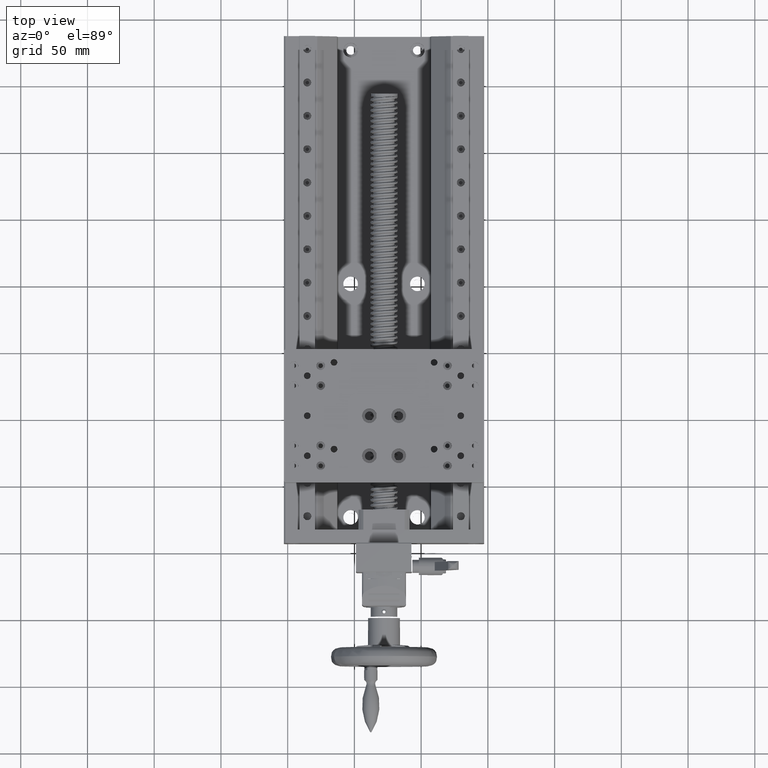
[diagram: clean part render]
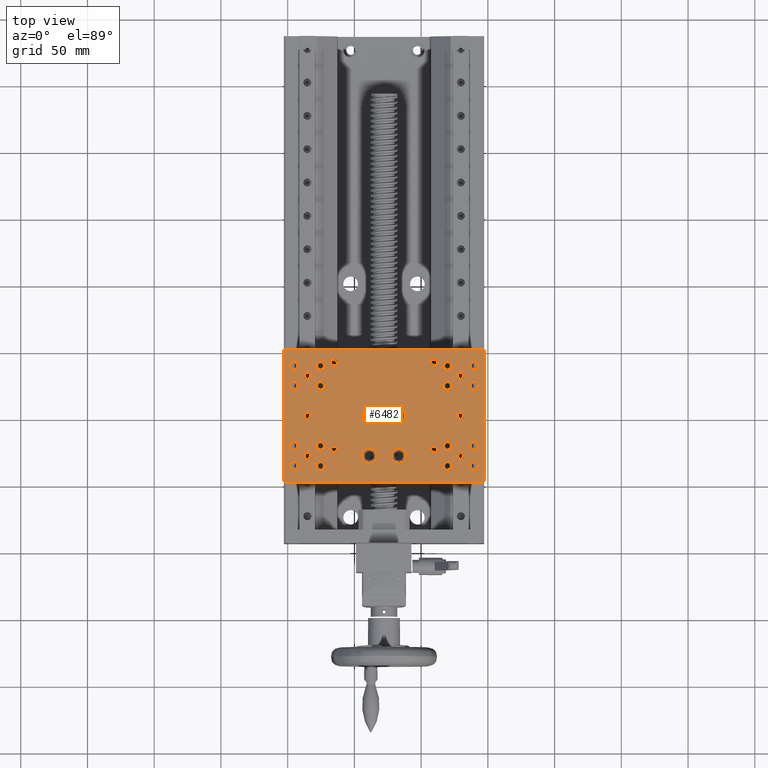
[diagram: same view with one face highlighted and labeled with its STEP entity id]
A machine part, top view. The second image highlights one B-rep face of the part: STEP entity #6482.
In plain terms, the highlighted planar face has unit normal (0, 0, 1).
Its self-contained STEP definition (entity closure, byte-faithful):
#54 = DIRECTION ( 'NONE',  ( -3.452590796308460919E-15, -1.665334536937734318E-16, -1.000000000000000000 ) ) ;
#111 = DIRECTION ( 'NONE',  ( -3.202566417187948859E-15, -1.000000000000000000, 0.000000000000000000 ) ) ;
#268 = CIRCLE ( 'NONE', #8891, 3.250000000000002665 ) ;
#270 = CARTESIAN_POINT ( 'NONE',  ( -95.32647947979995706, -88.79726459790853710, 47.49999999999963052 ) ) ;
#451 = AXIS2_PLACEMENT_3D ( 'NONE', #40846, #24515, #6334 ) ;
#486 = VECTOR ( 'NONE', #18070, 1000.000000000000114 ) ;
#506 = LINE ( 'NONE', #23642, #36720 ) ;
#558 = DIRECTION ( 'NONE',  ( -4.270088556250598741E-15, -1.000000000000000000, 0.000000000000000000 ) ) ;
#592 = ORIENTED_EDGE ( 'NONE', *, *, #40947, .T. ) ;
#660 = AXIS2_PLACEMENT_3D ( 'NONE', #16908, #30615, #44267 ) ;
#692 = EDGE_CURVE ( 'NONE', #12852, #42271, #5273, .T. ) ;
#892 = CARTESIAN_POINT ( 'NONE',  ( 29.67352052020017794, -50.54726459790895632, 47.49999999999919709 ) ) ;
#975 = VERTEX_POINT ( 'NONE', #8052 ) ;
#1004 = CARTESIAN_POINT ( 'NONE',  ( 39.67352052020010689, -70.54726459790900606, 47.49999999999916866 ) ) ;
#1033 = EDGE_CURVE ( 'NONE', #42271, #12852, #8003, .T. ) ;
#1040 = CARTESIAN_POINT ( 'NONE',  ( 9.673520520200106887, -73.04726459790890658, 47.49999999999926814 ) ) ;
#1073 = CIRCLE ( 'NONE', #6793, 3.250000000000002665 ) ;
#1095 = AXIS2_PLACEMENT_3D ( 'NONE', #1920, #19414, #15600 ) ;
#1195 = AXIS2_PLACEMENT_3D ( 'NONE', #19238, #19460, #29791 ) ;
#1211 = DIRECTION ( 'NONE',  ( -4.270088556250598741E-15, -1.000000000000000000, 0.000000000000000000 ) ) ;
#1218 = VERTEX_POINT ( 'NONE', #28174 ) ;
#1240 = ORIENTED_EDGE ( 'NONE', *, *, #3457, .T. ) ;
#1247 = VERTEX_POINT ( 'NONE', #14685 ) ;
#1364 = CIRCLE ( 'NONE', #30776, 3.250000000000002665 ) ;
#1387 = DIRECTION ( 'NONE',  ( 3.452590796308460919E-15, 1.665334536937734318E-16, 1.000000000000000000 ) ) ;
#1436 = VERTEX_POINT ( 'NONE', #40638 ) ;
#1494 = DIRECTION ( 'NONE',  ( -4.270088556250598741E-15, -1.000000000000000000, 0.000000000000000000 ) ) ;
#1539 = DIRECTION ( 'NONE',  ( 3.452590796308460919E-15, 1.665334536937734318E-16, 1.000000000000000000 ) ) ;
#1715 = DIRECTION ( 'NONE',  ( 0.7071067811865500152, 0.7071067811865451302, -2.536514071716354973E-15 ) ) ;
#1738 = DIRECTION ( 'NONE',  ( 4.163336342344379625E-15, 1.000000000000000000, 0.000000000000000000 ) ) ;
#1828 = ORIENTED_EDGE ( 'NONE', *, *, #16974, .F. ) ;
#1920 = CARTESIAN_POINT ( 'NONE',  ( 29.67352052020030584, -18.04726459790897763, 47.49999999999918998 ) ) ;
#2013 = EDGE_CURVE ( 'NONE', #31575, #28463, #4733, .T. ) ;
#2111 = ORIENTED_EDGE ( 'NONE', *, *, #11991, .F. ) ;
#2160 = CARTESIAN_POINT ( 'NONE',  ( 9.673520520200336037, -8.047264597908908357, 47.49999999999926104 ) ) ;
#2245 = VECTOR ( 'NONE', #1715, 1000.000000000000114 ) ;
#2591 = ORIENTED_EDGE ( 'NONE', *, *, #16629, .F. ) ;
#2644 = EDGE_CURVE ( 'NONE', #28463, #31575, #15495, .T. ) ;
#2679 = DIRECTION ( 'NONE',  ( -4.270088556250598741E-15, -1.000000000000000000, 0.000000000000000000 ) ) ;
#2746 = VERTEX_POINT ( 'NONE', #3624 ) ;
#2828 = DIRECTION ( 'NONE',  ( 3.452590796308460919E-15, 1.665334536937734318E-16, 1.000000000000000000 ) ) ;
#2884 = EDGE_CURVE ( 'NONE', #36900, #29328, #41708, .T. ) ;
#3025 = FACE_BOUND ( 'NONE', #7564, .T. ) ;
#3046 = AXIS2_PLACEMENT_3D ( 'NONE', #9714, #16418, #37263 ) ;
#3096 = EDGE_CURVE ( 'NONE', #9106, #40313, #29313, .T. ) ;
#3136 = AXIS2_PLACEMENT_3D ( 'NONE', #29870, #33215, #43056 ) ;
#3356 = VERTEX_POINT ( 'NONE', #42735 ) ;
#3392 = CARTESIAN_POINT ( 'NONE',  ( 9.673520520200344919, -5.547264597908934114, 47.49999999999926104 ) ) ;
#3411 = AXIS2_PLACEMENT_3D ( 'NONE', #26595, #9325, #13127 ) ;
#3412 = DIRECTION ( 'NONE',  ( -4.270088556250598741E-15, -1.000000000000000000, 0.000000000000000000 ) ) ;
#3457 = EDGE_CURVE ( 'NONE', #23702, #35286, #42083, .T. ) ;
#3474 = CARTESIAN_POINT ( 'NONE',  ( 39.67352052020028452, -22.29726459790900606, 47.49999999999916156 ) ) ;
#3509 = EDGE_CURVE ( 'NONE', #26834, #4737, #35471, .T. ) ;
#3624 = CARTESIAN_POINT ( 'NONE',  ( 39.67352052020005004, -88.79726459790902027, 47.49999999999917577 ) ) ;
#3685 = DIRECTION ( 'NONE',  ( -3.452590796308460919E-15, -1.665334536937734318E-16, -1.000000000000000000 ) ) ;
#3800 = AXIS2_PLACEMENT_3D ( 'NONE', #17044, #41699, #38332 ) ;
#3928 = ORIENTED_EDGE ( 'NONE', *, *, #22357, .T. ) ;
#3937 = ORIENTED_EDGE ( 'NONE', *, *, #7375, .F. ) ;
#4010 = DIRECTION ( 'NONE',  ( 3.452590796308460919E-15, 1.665334536937734318E-16, 1.000000000000000000 ) ) ;
#4070 = EDGE_CURVE ( 'NONE', #18486, #25440, #9395, .T. ) ;
#4082 = EDGE_CURVE ( 'NONE', #34330, #36863, #20866, .T. ) ;
#4145 = CARTESIAN_POINT ( 'NONE',  ( 29.67352052020010689, -75.54726459790900606, 47.49999999999920419 ) ) ;
#4169 = CARTESIAN_POINT ( 'NONE',  ( -95.32647947979994285, -82.29726459790853710, 47.49999999999963052 ) ) ;
#4230 = AXIS2_PLACEMENT_3D ( 'NONE', #43897, #5391, #26039 ) ;
#4364 = DIRECTION ( 'NONE',  ( -0.7071067811865451302, 0.7071067811865500152, 2.301000202913787996E-15 ) ) ;
#4393 = EDGE_LOOP ( 'NONE', ( #23811, #13255 ) ) ;
#4445 = DIRECTION ( 'NONE',  ( 3.469446951953650082E-15, 1.000000000000000000, 0.000000000000000000 ) ) ;
#4513 = EDGE_CURVE ( 'NONE', #36382, #21958, #28291, .T. ) ;
#4515 = DIRECTION ( 'NONE',  ( 5.551115123125840289E-15, 1.000000000000000000, 0.000000000000000000 ) ) ;
#4559 = AXIS2_PLACEMENT_3D ( 'NONE', #29680, #12623, #23786 ) ;
#4581 = DIRECTION ( 'NONE',  ( 3.452590796308460919E-15, 1.665334536937734318E-16, 1.000000000000000000 ) ) ;
#4631 = FACE_BOUND ( 'NONE', #40572, .T. ) ;
#4645 = VERTEX_POINT ( 'NONE', #36722 ) ;
#4686 = AXIS2_PLACEMENT_3D ( 'NONE', #17894, #9702, #13049 ) ;
#4703 = DIRECTION ( 'NONE',  ( -4.270088556250598741E-15, -1.000000000000000000, 0.000000000000000000 ) ) ;
#4733 = CIRCLE ( 'NONE', #41242, 3.250000000000002665 ) ;
#4737 = VERTEX_POINT ( 'NONE', #34929 ) ;
#4797 = CARTESIAN_POINT ( 'NONE',  ( 47.17352052020002162, -97.04726459319708454, 47.49999999999914735 ) ) ;
#4806 = EDGE_LOOP ( 'NONE', ( #9653, #18482 ) ) ;
#4932 = VERTEX_POINT ( 'NONE', #6562 ) ;
#5008 = DIRECTION ( 'NONE',  ( -4.270088556250598741E-15, -1.000000000000000000, 0.000000000000000000 ) ) ;
#5105 = CIRCLE ( 'NONE', #33770, 3.250000000000002665 ) ;
#5155 = AXIS2_PLACEMENT_3D ( 'NONE', #10301, #30498, #2679 ) ;
#5273 = CIRCLE ( 'NONE', #3136, 3.250000000000002665 ) ;
#5391 = DIRECTION ( 'NONE',  ( 3.452590796308460919E-15, 1.665334536937734318E-16, 1.000000000000000000 ) ) ;
#5450 = DIRECTION ( 'NONE',  ( 3.452590796308460919E-15, 1.665334536937734318E-16, 1.000000000000000000 ) ) ;
#5486 = AXIS2_PLACEMENT_3D ( 'NONE', #29681, #5450, #26320 ) ;
#5506 = FACE_BOUND ( 'NONE', #10867, .T. ) ;
#5575 = EDGE_CURVE ( 'NONE', #44190, #43917, #268, .T. ) ;
#5710 = CARTESIAN_POINT ( 'NONE',  ( -85.32647947979968706, -15.54726459790860282, 47.49999999999958078 ) ) ;
#5744 = DIRECTION ( 'NONE',  ( -3.452590796308460919E-15, -1.665334536937734318E-16, -1.000000000000000000 ) ) ;
#5750 = DIRECTION ( 'NONE',  ( -4.270088556250598741E-15, -1.000000000000000000, 0.000000000000000000 ) ) ;
#5758 = CARTESIAN_POINT ( 'NONE',  ( 29.67352052020020992, -45.54726459790900606, 47.49999999999919709 ) ) ;
#5883 = DIRECTION ( 'NONE',  ( -3.784851220313039469E-15, -1.000000000000000000, 0.000000000000000000 ) ) ;
#5885 = CIRCLE ( 'NONE', #4559, 2.499999999999974243 ) ;
#5899 = CARTESIAN_POINT ( 'NONE',  ( 39.67352052020032716, -7.297264597909011385, 47.49999999999916156 ) ) ;
#5916 = EDGE_CURVE ( 'NONE', #10644, #24197, #19624, .T. ) ;
#5934 = FACE_BOUND ( 'NONE', #42113, .T. ) ;
#6092 = CARTESIAN_POINT ( 'NONE',  ( 39.67352052020011399, -67.29726459790900606, 47.49999999999916866 ) ) ;
#6156 = VERTEX_POINT ( 'NONE', #25374 ) ;
#6283 = CARTESIAN_POINT ( 'NONE',  ( -16.82647947979990022, -72.54726459790882132, 47.49999999999936051 ) ) ;
#6334 = DIRECTION ( 'NONE',  ( -3.202566417187948859E-15, -1.000000000000000000, 0.000000000000000000 ) ) ;
#6377 = FACE_BOUND ( 'NONE', #15625, .T. ) ;
#6482 = ADVANCED_FACE ( 'NONE', ( #8213, #29293, #24235, #4631, #37876, #18312, #38921, #21927, #20086, #16471, #3025, #33530, #5934, #12898, #23004, #36434, #9776, #37096, #6377, #16258, #33310, #26589, #16024, #29737, #43395, #33752, #5506, #36653, #29964, #40230, #12680 ), #40005, .T. ) ;
#6562 = CARTESIAN_POINT ( 'NONE',  ( 19.67352052020027742, -22.29726459790893855, 47.49999999999923261 ) ) ;
#6573 = ORIENTED_EDGE ( 'NONE', *, *, #43695, .F. ) ;
#6578 = AXIS2_PLACEMENT_3D ( 'NONE', #32570, #22054, #38615 ) ;
#6608 = CIRCLE ( 'NONE', #18082, 2.499999999999974243 ) ;
#6682 = ORIENTED_EDGE ( 'NONE', *, *, #27202, .T. ) ;
#6753 = ORIENTED_EDGE ( 'NONE', *, *, #32417, .T. ) ;
#6793 = AXIS2_PLACEMENT_3D ( 'NONE', #37132, #23267, #16065 ) ;
#6849 = DIRECTION ( 'NONE',  ( -4.270088556250598741E-15, -1.000000000000000000, 0.000000000000000000 ) ) ;
#6982 = DIRECTION ( 'NONE',  ( -4.270088556250598741E-15, -1.000000000000000000, 0.000000000000000000 ) ) ;
#7010 = DIRECTION ( 'NONE',  ( 5.551115123125840289E-15, 1.000000000000000000, 0.000000000000000000 ) ) ;
#7126 = CIRCLE ( 'NONE', #37204, 2.499999999999974243 ) ;
#7193 = EDGE_CURVE ( 'NONE', #1436, #33613, #21266, .T. ) ;
#7198 = CARTESIAN_POINT ( 'NONE',  ( -16.82647947979979719, -42.54726459790882132, 47.49999999999936051 ) ) ;
#7375 = EDGE_CURVE ( 'NONE', #10025, #23591, #15489, .T. ) ;
#7403 = VERTEX_POINT ( 'NONE', #10324 ) ;
#7495 = EDGE_CURVE ( 'NONE', #15944, #17297, #18364, .T. ) ;
#7564 = EDGE_LOOP ( 'NONE', ( #25058, #32556 ) ) ;
#7598 = AXIS2_PLACEMENT_3D ( 'NONE', #25264, #7755, #21467 ) ;
#7688 = CIRCLE ( 'NONE', #37033, 3.250000000000002665 ) ;
#7717 = CARTESIAN_POINT ( 'NONE',  ( 29.67352052020030584, -18.04726459790897763, 47.49999999999918998 ) ) ;
#7730 = CARTESIAN_POINT ( 'NONE',  ( 39.67352052020007136, -82.29726459790900606, 47.49999999999917577 ) ) ;
#7755 = DIRECTION ( 'NONE',  ( 3.452590796308460919E-15, 1.665334536937734318E-16, 1.000000000000000000 ) ) ;
#7773 = ORIENTED_EDGE ( 'NONE', *, *, #692, .F. ) ;
#8003 = CIRCLE ( 'NONE', #37355, 3.250000000000002665 ) ;
#8012 = ORIENTED_EDGE ( 'NONE', *, *, #16041, .T. ) ;
#8052 = CARTESIAN_POINT ( 'NONE',  ( -95.32647947979968706, -7.297264597908539763, 47.49999999999961631 ) ) ;
#8213 = FACE_BOUND ( 'NONE', #28931, .T. ) ;
#8236 = CARTESIAN_POINT ( 'NONE',  ( -75.32647947979988601, -70.54726459790860815, 47.49999999999956657 ) ) ;
#8251 = EDGE_LOOP ( 'NONE', ( #37803, #21450 ) ) ;
#8322 = EDGE_CURVE ( 'NONE', #10201, #28768, #42167, .T. ) ;
#8631 = EDGE_CURVE ( 'NONE', #36351, #17601, #27908, .T. ) ;
#8640 = EDGE_LOOP ( 'NONE', ( #14283, #26443 ) ) ;
#8763 = CARTESIAN_POINT ( 'NONE',  ( 39.67352052020027742, -25.54726459790900961, 47.49999999999916156 ) ) ;
#8818 = EDGE_CURVE ( 'NONE', #16797, #27960, #30757, .T. ) ;
#8891 = AXIS2_PLACEMENT_3D ( 'NONE', #15800, #29502, #9098 ) ;
#9098 = DIRECTION ( 'NONE',  ( -3.202566417187948859E-15, -1.000000000000000000, 0.000000000000000000 ) ) ;
#9106 = VERTEX_POINT ( 'NONE', #36330 ) ;
#9120 = ORIENTED_EDGE ( 'NONE', *, *, #7193, .T. ) ;
#9214 = CARTESIAN_POINT ( 'NONE',  ( 29.67352052020019926, -48.04726459790897763, 47.49999999999919709 ) ) ;
#9325 = DIRECTION ( 'NONE',  ( -3.452590796308460919E-15, -1.665334536937734318E-16, -1.000000000000000000 ) ) ;
#9395 = CIRCLE ( 'NONE', #40157, 2.499999999999974243 ) ;
#9408 = VERTEX_POINT ( 'NONE', #42130 ) ;
#9510 = ORIENTED_EDGE ( 'NONE', *, *, #36841, .F. ) ;
#9563 = CARTESIAN_POINT ( 'NONE',  ( 19.67352052020005715, -88.79726459790894921, 47.49999999999923972 ) ) ;
#9612 = VERTEX_POINT ( 'NONE', #10040 ) ;
#9653 = ORIENTED_EDGE ( 'NONE', *, *, #10098, .T. ) ;
#9661 = CIRCLE ( 'NONE', #34713, 5.499999999999991118 ) ;
#9702 = DIRECTION ( 'NONE',  ( -3.452590796308460919E-15, -1.665334536937734318E-16, -1.000000000000000000 ) ) ;
#9714 = CARTESIAN_POINT ( 'NONE',  ( -95.32647947979972969, -25.54726459790854065, 47.49999999999962341 ) ) ;
#9776 = FACE_BOUND ( 'NONE', #14092, .T. ) ;
#9851 = CIRCLE ( 'NONE', #34912, 3.250000000000002665 ) ;
#9889 = CARTESIAN_POINT ( 'NONE',  ( -75.32647947979972969, -25.54726459790861171, 47.49999999999955946 ) ) ;
#9961 = ORIENTED_EDGE ( 'NONE', *, *, #33131, .F. ) ;
#10025 = VERTEX_POINT ( 'NONE', #3474 ) ;
#10040 = CARTESIAN_POINT ( 'NONE',  ( -95.32647947979970127, -13.79726459790854598, 47.49999999999961631 ) ) ;
#10093 = CARTESIAN_POINT ( 'NONE',  ( -102.8264794797996302, 1.952735402091489103, 47.49999999999964473 ) ) ;
#10098 = EDGE_CURVE ( 'NONE', #4737, #26834, #44071, .T. ) ;
#10201 = VERTEX_POINT ( 'NONE', #4797 ) ;
#10290 = EDGE_CURVE ( 'NONE', #38824, #20621, #14009, .T. ) ;
#10301 = CARTESIAN_POINT ( 'NONE',  ( -95.32647947979990022, -70.54726459790853710, 47.49999999999963052 ) ) ;
#10324 = CARTESIAN_POINT ( 'NONE',  ( 39.67352052020009268, -73.79726459790902027, 47.49999999999916866 ) ) ;
#10438 = AXIS2_PLACEMENT_3D ( 'NONE', #23628, #40840, #5883 ) ;
#10447 = ORIENTED_EDGE ( 'NONE', *, *, #4070, .T. ) ;
#10453 = DIRECTION ( 'NONE',  ( -3.202566417187948859E-15, -1.000000000000000000, 0.000000000000000000 ) ) ;
#10496 = CARTESIAN_POINT ( 'NONE',  ( -75.32647947979995706, -88.79726459790860815, 47.49999999999957367 ) ) ;
#10621 = DIRECTION ( 'NONE',  ( 3.452590796308460919E-15, 1.665334536937734318E-16, 1.000000000000000000 ) ) ;
#10644 = VERTEX_POINT ( 'NONE', #10496 ) ;
#10665 = DIRECTION ( 'NONE',  ( 3.452590796308460919E-15, 1.665334536937734318E-16, 1.000000000000000000 ) ) ;
#10867 = EDGE_LOOP ( 'NONE', ( #8012, #23192 ) ) ;
#10912 = CIRCLE ( 'NONE', #35959, 3.250000000000002665 ) ;
#10954 = DIRECTION ( 'NONE',  ( -3.452590796308460919E-15, -1.665334536937734318E-16, -1.000000000000000000 ) ) ;
#10975 = AXIS2_PLACEMENT_3D ( 'NONE', #25099, #4010, #21743 ) ;
#11008 = CIRCLE ( 'NONE', #36060, 2.499999999999974243 ) ;
#11111 = DIRECTION ( 'NONE',  ( 3.452590796308460919E-15, 1.665334536937734318E-16, 1.000000000000000000 ) ) ;
#11135 = ORIENTED_EDGE ( 'NONE', *, *, #40129, .T. ) ;
#11233 = ORIENTED_EDGE ( 'NONE', *, *, #32294, .F. ) ;
#11242 = EDGE_LOOP ( 'NONE', ( #28297, #29280 ) ) ;
#11328 = CARTESIAN_POINT ( 'NONE',  ( -102.8264794797996444, 0.9527353973795351649, 47.49999999999964473 ) ) ;
#11475 = CARTESIAN_POINT ( 'NONE',  ( -65.32647947979988601, -73.04726459790863657, 47.49999999999952394 ) ) ;
#11673 = DIRECTION ( 'NONE',  ( 3.452590796308460919E-15, 1.665334536937734318E-16, 1.000000000000000000 ) ) ;
#11888 = LINE ( 'NONE', #36518, #19633 ) ;
#11916 = DIRECTION ( 'NONE',  ( -3.452590796308460919E-15, -1.665334536937734318E-16, -1.000000000000000000 ) ) ;
#11918 = CARTESIAN_POINT ( 'NONE',  ( -102.8264794797999713, -97.04726459319657295, 47.49999999999965894 ) ) ;
#11985 = CARTESIAN_POINT ( 'NONE',  ( -16.82647947979992864, -83.54726459790880710, 47.49999999999936051 ) ) ;
#11991 = EDGE_CURVE ( 'NONE', #22840, #32266, #23160, .T. ) ;
#12014 = CIRCLE ( 'NONE', #44244, 3.250000000000002665 ) ;
#12068 = CARTESIAN_POINT ( 'NONE',  ( -95.32647947979971548, -22.29726459790854065, 47.49999999999962341 ) ) ;
#12254 = CARTESIAN_POINT ( 'NONE',  ( -75.32647947979992864, -82.29726459790860815, 47.49999999999957367 ) ) ;
#12271 = EDGE_LOOP ( 'NONE', ( #16916, #19471 ) ) ;
#12287 = ORIENTED_EDGE ( 'NONE', *, *, #42325, .F. ) ;
#12325 = CARTESIAN_POINT ( 'NONE',  ( 29.67352052020007136, -80.54726459790894921, 47.49999999999920419 ) ) ;
#12500 = DIRECTION ( 'NONE',  ( 3.452590796308460919E-15, 1.665334536937734318E-16, 1.000000000000000000 ) ) ;
#12623 = DIRECTION ( 'NONE',  ( -3.452590796308460919E-15, -1.665334536937734318E-16, -1.000000000000000000 ) ) ;
#12680 = FACE_OUTER_BOUND ( 'NONE', #36136, .T. ) ;
#12852 = VERTEX_POINT ( 'NONE', #26735 ) ;
#12898 = FACE_BOUND ( 'NONE', #16972, .T. ) ;
#13049 = DIRECTION ( 'NONE',  ( 5.551115123125840289E-15, 1.000000000000000000, 0.000000000000000000 ) ) ;
#13091 = EDGE_CURVE ( 'NONE', #31992, #38114, #11888, .T. ) ;
#13093 = EDGE_CURVE ( 'NONE', #22845, #1247, #43227, .T. ) ;
#13121 = DIRECTION ( 'NONE',  ( 3.452590796308460919E-15, 1.665334536937614509E-16, 1.000000000000000000 ) ) ;
#13127 = DIRECTION ( 'NONE',  ( 3.469446951953650082E-15, 1.000000000000000000, 0.000000000000000000 ) ) ;
#13128 = LINE ( 'NONE', #32664, #14429 ) ;
#13251 = CARTESIAN_POINT ( 'NONE',  ( 39.67352052020026321, -28.79726459790901316, 47.49999999999916156 ) ) ;
#13252 = CIRCLE ( 'NONE', #44048, 3.250000000000002665 ) ;
#13255 = ORIENTED_EDGE ( 'NONE', *, *, #32321, .F. ) ;
#13260 = CARTESIAN_POINT ( 'NONE',  ( -16.82647947979990732, -78.04726459790880710, 47.49999999999936051 ) ) ;
#13394 = CARTESIAN_POINT ( 'NONE',  ( 39.67352052020027742, -25.54726459790900961, 47.49999999999916156 ) ) ;
#13404 = DIRECTION ( 'NONE',  ( 3.452590796308460919E-15, 1.665334536937734318E-16, 1.000000000000000000 ) ) ;
#13486 = CARTESIAN_POINT ( 'NONE',  ( -65.32647947979965863, -8.047264597908645456, 47.49999999999951683 ) ) ;
#13713 = CARTESIAN_POINT ( 'NONE',  ( 9.673520520200080242, -75.54726459790887816, 47.49999999999926814 ) ) ;
#13750 = CIRCLE ( 'NONE', #28079, 5.499999999999991118 ) ;
#13761 = AXIS2_PLACEMENT_3D ( 'NONE', #39184, #14320, #21968 ) ;
#14009 = CIRCLE ( 'NONE', #10438, 5.499999999999991118 ) ;
#14092 = EDGE_LOOP ( 'NONE', ( #12287, #43547 ) ) ;
#14283 = ORIENTED_EDGE ( 'NONE', *, *, #29289, .F. ) ;
#14320 = DIRECTION ( 'NONE',  ( 3.452590796308460919E-15, 1.665334536937734318E-16, 1.000000000000000000 ) ) ;
#14429 = VECTOR ( 'NONE', #23237, 1000.000000000000114 ) ;
#14468 = CARTESIAN_POINT ( 'NONE',  ( 19.67352052020027386, -25.54726459790894211, 47.49999999999923261 ) ) ;
#14474 = DIRECTION ( 'NONE',  ( 3.452590796308460919E-15, 1.665334536937734318E-16, 1.000000000000000000 ) ) ;
#14492 = LINE ( 'NONE', #31096, #486 ) ;
#14574 = ORIENTED_EDGE ( 'NONE', *, *, #18797, .T. ) ;
#14598 = EDGE_CURVE ( 'NONE', #43917, #44190, #13252, .T. ) ;
#14663 = EDGE_CURVE ( 'NONE', #28443, #20295, #36857, .T. ) ;
#14685 = CARTESIAN_POINT ( 'NONE',  ( -75.32647947979968706, -13.79726459790861526, 47.49999999999955946 ) ) ;
#14727 = DIRECTION ( 'NONE',  ( 3.469446951953650082E-15, 1.000000000000000000, 0.000000000000000000 ) ) ;
#14782 = DIRECTION ( 'NONE',  ( 5.551115123125840289E-15, 1.000000000000000000, 0.000000000000000000 ) ) ;
#15226 = ORIENTED_EDGE ( 'NONE', *, *, #42321, .F. ) ;
#15451 = ORIENTED_EDGE ( 'NONE', *, *, #3096, .F. ) ;
#15481 = CIRCLE ( 'NONE', #451, 3.250000000000002665 ) ;
#15489 = CIRCLE ( 'NONE', #19812, 3.250000000000002665 ) ;
#15495 = CIRCLE ( 'NONE', #5486, 3.250000000000002665 ) ;
#15600 = DIRECTION ( 'NONE',  ( 4.163336342344379625E-15, 1.000000000000000000, 0.000000000000000000 ) ) ;
#15625 = EDGE_LOOP ( 'NONE', ( #9961, #31498 ) ) ;
#15748 = LINE ( 'NONE', #10093, #41063 ) ;
#15800 = CARTESIAN_POINT ( 'NONE',  ( 19.67352052020012110, -70.54726459790894921, 47.49999999999923972 ) ) ;
#15807 = CARTESIAN_POINT ( 'NONE',  ( -27.82647947979980074, -48.04726459790877868, 47.49999999999939604 ) ) ;
#15837 = CARTESIAN_POINT ( 'NONE',  ( 19.67352052020026321, -28.79726459790894566, 47.49999999999923261 ) ) ;
#15944 = VERTEX_POINT ( 'NONE', #20799 ) ;
#16024 = FACE_BOUND ( 'NONE', #22073, .T. ) ;
#16041 = EDGE_CURVE ( 'NONE', #17601, #36351, #43770, .T. ) ;
#16065 = DIRECTION ( 'NONE',  ( -4.270088556250598741E-15, -1.000000000000000000, 0.000000000000000000 ) ) ;
#16164 = ORIENTED_EDGE ( 'NONE', *, *, #37782, .F. ) ;
#16188 = EDGE_CURVE ( 'NONE', #21958, #36382, #13750, .T. ) ;
#16197 = CARTESIAN_POINT ( 'NONE',  ( -75.32647947979974390, -28.79726459790861526, 47.49999999999955946 ) ) ;
#16258 = FACE_BOUND ( 'NONE', #19127, .T. ) ;
#16341 = EDGE_LOOP ( 'NONE', ( #37630, #23068 ) ) ;
#16391 = DIRECTION ( 'NONE',  ( 3.452590796308460919E-15, 1.665334536937734318E-16, 1.000000000000000000 ) ) ;
#16418 = DIRECTION ( 'NONE',  ( 3.452590796308460919E-15, 1.665334536937734318E-16, 1.000000000000000000 ) ) ;
#16432 = CIRCLE ( 'NONE', #17881, 3.250000000000002665 ) ;
#16471 = FACE_BOUND ( 'NONE', #19538, .T. ) ;
#16583 = AXIS2_PLACEMENT_3D ( 'NONE', #1040, #24396, #14727 ) ;
#16629 = EDGE_CURVE ( 'NONE', #29254, #9408, #30220, .T. ) ;
#16797 = VERTEX_POINT ( 'NONE', #18129 ) ;
#16908 = CARTESIAN_POINT ( 'NONE',  ( -65.32647947979965863, -8.047264597908645456, 47.49999999999951683 ) ) ;
#16916 = ORIENTED_EDGE ( 'NONE', *, *, #18814, .T. ) ;
#16972 = EDGE_LOOP ( 'NONE', ( #7773, #44318 ) ) ;
#16974 = EDGE_CURVE ( 'NONE', #23591, #10025, #10912, .T. ) ;
#17039 = CARTESIAN_POINT ( 'NONE',  ( 46.17352051548841274, 1.952735402090968631, 47.49999999999913314 ) ) ;
#17044 = CARTESIAN_POINT ( 'NONE',  ( 19.67352052020006781, -85.54726459790894921, 47.49999999999923972 ) ) ;
#17070 = CARTESIAN_POINT ( 'NONE',  ( -95.32647947979988601, -67.29726459790853710, 47.49999999999963052 ) ) ;
#17106 = DIRECTION ( 'NONE',  ( -3.784851220313039469E-15, -1.000000000000000000, 0.000000000000000000 ) ) ;
#17197 = EDGE_LOOP ( 'NONE', ( #21217, #30830 ) ) ;
#17263 = VERTEX_POINT ( 'NONE', #36379 ) ;
#17290 = DIRECTION ( 'NONE',  ( 3.452590796308460919E-15, 1.665334536937734318E-16, 1.000000000000000000 ) ) ;
#17297 = VERTEX_POINT ( 'NONE', #16197 ) ;
#17323 = CIRCLE ( 'NONE', #20945, 3.250000000000002665 ) ;
#17502 = EDGE_LOOP ( 'NONE', ( #6682, #1240 ) ) ;
#17601 = VERTEX_POINT ( 'NONE', #21575 ) ;
#17854 = EDGE_CURVE ( 'NONE', #23783, #18096, #27431, .T. ) ;
#17881 = AXIS2_PLACEMENT_3D ( 'NONE', #8236, #42529, #1494 ) ;
#17893 = DIRECTION ( 'NONE',  ( -3.452590796308460919E-15, -1.665334536937734318E-16, -1.000000000000000000 ) ) ;
#17894 = CARTESIAN_POINT ( 'NONE',  ( -85.32647947979980074, -48.04726459790857263, 47.49999999999958078 ) ) ;
#17906 = CIRCLE ( 'NONE', #23662, 5.499999999999991118 ) ;
#17985 = CARTESIAN_POINT ( 'NONE',  ( -16.82647947979982206, -53.54726459790880000, 47.49999999999936051 ) ) ;
#18026 = DIRECTION ( 'NONE',  ( 4.163336342344379625E-15, 1.000000000000000000, 0.000000000000000000 ) ) ;
#18070 = DIRECTION ( 'NONE',  ( 0.7071067811865451302, -0.7071067811865500152, -2.301000202913787996E-15 ) ) ;
#18082 = AXIS2_PLACEMENT_3D ( 'NONE', #41081, #54, #7010 ) ;
#18096 = VERTEX_POINT ( 'NONE', #23058 ) ;
#18129 = CARTESIAN_POINT ( 'NONE',  ( -65.32647947979964442, -5.547264597908670325, 47.49999999999951683 ) ) ;
#18260 = CARTESIAN_POINT ( 'NONE',  ( -75.32647947979994285, -85.54726459790860815, 47.49999999999957367 ) ) ;
#18312 = FACE_BOUND ( 'NONE', #43577, .T. ) ;
#18364 = CIRCLE ( 'NONE', #40553, 3.250000000000002665 ) ;
#18482 = ORIENTED_EDGE ( 'NONE', *, *, #3509, .T. ) ;
#18486 = VERTEX_POINT ( 'NONE', #5710 ) ;
#18585 = EDGE_LOOP ( 'NONE', ( #36983, #33367 ) ) ;
#18719 = CIRCLE ( 'NONE', #30898, 3.250000000000002665 ) ;
#18795 = CARTESIAN_POINT ( 'NONE',  ( 29.67352052020009623, -78.04726459790897763, 47.49999999999920419 ) ) ;
#18797 = EDGE_CURVE ( 'NONE', #31315, #31745, #15748, .T. ) ;
#18814 = EDGE_CURVE ( 'NONE', #20295, #28443, #5885, .T. ) ;
#18868 = DIRECTION ( 'NONE',  ( 5.551115123125840289E-15, 1.000000000000000000, 0.000000000000000000 ) ) ;
#19009 = AXIS2_PLACEMENT_3D ( 'NONE', #36260, #2828, #5750 ) ;
#19012 = EDGE_CURVE ( 'NONE', #4645, #17263, #25949, .T. ) ;
#19115 = ORIENTED_EDGE ( 'NONE', *, *, #43041, .T. ) ;
#19127 = EDGE_LOOP ( 'NONE', ( #6573, #25985 ) ) ;
#19164 = DIRECTION ( 'NONE',  ( 3.452590796308460919E-15, 1.665334536937734318E-16, 1.000000000000000000 ) ) ;
#19220 = DIRECTION ( 'NONE',  ( -3.452590796308460919E-15, -1.665334536937734318E-16, -1.000000000000000000 ) ) ;
#19238 = CARTESIAN_POINT ( 'NONE',  ( -65.32647947979988601, -73.04726459790863657, 47.49999999999952394 ) ) ;
#19393 = VERTEX_POINT ( 'NONE', #34468 ) ;
#19414 = DIRECTION ( 'NONE',  ( -3.452590796308460919E-15, -1.665334536937734318E-16, -1.000000000000000000 ) ) ;
#19460 = DIRECTION ( 'NONE',  ( -3.452590796308460919E-15, -1.665334536937734318E-16, -1.000000000000000000 ) ) ;
#19471 = ORIENTED_EDGE ( 'NONE', *, *, #14663, .T. ) ;
#19497 = CIRCLE ( 'NONE', #6578, 2.499999999999974243 ) ;
#19538 = EDGE_LOOP ( 'NONE', ( #16164, #2591 ) ) ;
#19624 = CIRCLE ( 'NONE', #37498, 3.250000000000002665 ) ;
#19633 = VECTOR ( 'NONE', #43026, 1000.000000000000000 ) ;
#19678 = CARTESIAN_POINT ( 'NONE',  ( 19.67352052020033426, -7.297264597908942108, 47.49999999999922551 ) ) ;
#19682 = CIRCLE ( 'NONE', #43278, 2.499999999999974243 ) ;
#19780 = CIRCLE ( 'NONE', #7598, 3.250000000000002665 ) ;
#19799 = CARTESIAN_POINT ( 'NONE',  ( -16.82647947979980074, -48.04726459790881421, 47.49999999999936051 ) ) ;
#19812 = AXIS2_PLACEMENT_3D ( 'NONE', #8763, #22461, #32766 ) ;
#19903 = ORIENTED_EDGE ( 'NONE', *, *, #30577, .T. ) ;
#20086 = FACE_BOUND ( 'NONE', #17197, .T. ) ;
#20295 = VERTEX_POINT ( 'NONE', #4145 ) ;
#20417 = DIRECTION ( 'NONE',  ( -3.486929317224867175E-15, -1.000000000000000000, 1.665334536937734811E-16 ) ) ;
#20605 = ORIENTED_EDGE ( 'NONE', *, *, #23445, .F. ) ;
#20621 = VERTEX_POINT ( 'NONE', #6283 ) ;
#20710 = VERTEX_POINT ( 'NONE', #35190 ) ;
#20768 = CARTESIAN_POINT ( 'NONE',  ( 19.67352052020027386, -25.54726459790894211, 47.49999999999923261 ) ) ;
#20799 = CARTESIAN_POINT ( 'NONE',  ( -75.32647947979972969, -22.29726459790860815, 47.49999999999955946 ) ) ;
#20866 = CIRCLE ( 'NONE', #41579, 2.499999999999974243 ) ;
#20944 = DIRECTION ( 'NONE',  ( -3.784851220313039469E-15, -1.000000000000000000, 0.000000000000000000 ) ) ;
#20945 = AXIS2_PLACEMENT_3D ( 'NONE', #38449, #24801, #35967 ) ;
#21109 = ORIENTED_EDGE ( 'NONE', *, *, #5575, .F. ) ;
#21217 = ORIENTED_EDGE ( 'NONE', *, *, #2013, .F. ) ;
#21266 = CIRCLE ( 'NONE', #44161, 2.499999999999974243 ) ;
#21294 = CARTESIAN_POINT ( 'NONE',  ( 9.673520520200106887, -73.04726459790890658, 47.49999999999926814 ) ) ;
#21450 = ORIENTED_EDGE ( 'NONE', *, *, #19012, .T. ) ;
#21467 = DIRECTION ( 'NONE',  ( -4.270088556250598741E-15, -1.000000000000000000, 0.000000000000000000 ) ) ;
#21532 = ORIENTED_EDGE ( 'NONE', *, *, #22955, .T. ) ;
#21575 = CARTESIAN_POINT ( 'NONE',  ( 9.673520520200115769, -70.54726459790893500, 47.49999999999926814 ) ) ;
#21696 = VERTEX_POINT ( 'NONE', #5899 ) ;
#21728 = ORIENTED_EDGE ( 'NONE', *, *, #29856, .T. ) ;
#21743 = DIRECTION ( 'NONE',  ( -3.784851220313039469E-15, -1.000000000000000000, 0.000000000000000000 ) ) ;
#21772 = CARTESIAN_POINT ( 'NONE',  ( -38.82647947979992864, -83.54726459790872184, 47.49999999999943867 ) ) ;
#21872 = CARTESIAN_POINT ( 'NONE',  ( -95.32647947979990022, -70.54726459790853710, 47.49999999999963052 ) ) ;
#21927 = FACE_BOUND ( 'NONE', #4393, .T. ) ;
#21943 = EDGE_CURVE ( 'NONE', #9612, #975, #5105, .T. ) ;
#21958 = VERTEX_POINT ( 'NONE', #17985 ) ;
#21968 = DIRECTION ( 'NONE',  ( -4.270088556250598741E-15, -1.000000000000000000, 0.000000000000000000 ) ) ;
#22054 = DIRECTION ( 'NONE',  ( -3.452590796308460919E-15, -1.665334536937734318E-16, -1.000000000000000000 ) ) ;
#22073 = EDGE_LOOP ( 'NONE', ( #21532, #32016 ) ) ;
#22157 = CARTESIAN_POINT ( 'NONE',  ( 34.17352051784401823, -110.0472645955530311, 47.49999999999919709 ) ) ;
#22199 = DIRECTION ( 'NONE',  ( -3.784851220313039469E-15, -1.000000000000000000, 0.000000000000000000 ) ) ;
#22263 = DIRECTION ( 'NONE',  ( 3.452590796308460919E-15, 1.665334536937734318E-16, 1.000000000000000000 ) ) ;
#22315 = DIRECTION ( 'NONE',  ( -4.270088556250598741E-15, -1.000000000000000000, 0.000000000000000000 ) ) ;
#22357 = EDGE_CURVE ( 'NONE', #37291, #10201, #29317, .T. ) ;
#22419 = CARTESIAN_POINT ( 'NONE',  ( -16.82647947979980074, -48.04726459790881421, 47.49999999999936051 ) ) ;
#22461 = DIRECTION ( 'NONE',  ( 3.452590796308460919E-15, 1.665334536937734318E-16, 1.000000000000000000 ) ) ;
#22601 = CIRCLE ( 'NONE', #4686, 2.499999999999974243 ) ;
#22840 = VERTEX_POINT ( 'NONE', #38179 ) ;
#22845 = VERTEX_POINT ( 'NONE', #31265 ) ;
#22864 = CIRCLE ( 'NONE', #39309, 3.250000000000002665 ) ;
#22924 = CIRCLE ( 'NONE', #42268, 5.499999999999991118 ) ;
#22955 = EDGE_CURVE ( 'NONE', #36863, #34330, #19497, .T. ) ;
#23004 = FACE_BOUND ( 'NONE', #37534, .T. ) ;
#23058 = CARTESIAN_POINT ( 'NONE',  ( -38.82647947979989311, -72.54726459790873605, 47.49999999999943867 ) ) ;
#23068 = ORIENTED_EDGE ( 'NONE', *, *, #25196, .T. ) ;
#23160 = CIRCLE ( 'NONE', #3800, 3.250000000000002665 ) ;
#23192 = ORIENTED_EDGE ( 'NONE', *, *, #8631, .T. ) ;
#23218 = ORIENTED_EDGE ( 'NONE', *, *, #13091, .T. ) ;
#23237 = DIRECTION ( 'NONE',  ( -0.7071067811865500152, -0.7071067811865451302, 2.536514071716354973E-15 ) ) ;
#23267 = DIRECTION ( 'NONE',  ( 3.452590796308460919E-15, 1.665334536937734318E-16, 1.000000000000000000 ) ) ;
#23312 = EDGE_CURVE ( 'NONE', #7403, #30212, #22864, .T. ) ;
#23445 = EDGE_CURVE ( 'NONE', #27206, #4932, #43617, .T. ) ;
#23527 = EDGE_CURVE ( 'NONE', #1218, #21696, #1364, .T. ) ;
#23572 = DIRECTION ( 'NONE',  ( -4.270088556250598741E-15, -1.000000000000000000, 0.000000000000000000 ) ) ;
#23591 = VERTEX_POINT ( 'NONE', #13251 ) ;
#23609 = DIRECTION ( 'NONE',  ( -3.784851220313039469E-15, -1.000000000000000000, 0.000000000000000000 ) ) ;
#23628 = CARTESIAN_POINT ( 'NONE',  ( -16.82647947979990732, -78.04726459790880710, 47.49999999999936051 ) ) ;
#23642 = CARTESIAN_POINT ( 'NONE',  ( -102.8264794797999855, -98.04726459790852289, 47.49999999999965894 ) ) ;
#23662 = AXIS2_PLACEMENT_3D ( 'NONE', #13260, #16391, #29420 ) ;
#23702 = VERTEX_POINT ( 'NONE', #33657 ) ;
#23783 = VERTEX_POINT ( 'NONE', #21772 ) ;
#23786 = DIRECTION ( 'NONE',  ( 4.163336342344379625E-15, 1.000000000000000000, 0.000000000000000000 ) ) ;
#23811 = ORIENTED_EDGE ( 'NONE', *, *, #23312, .F. ) ;
#23936 = CARTESIAN_POINT ( 'NONE',  ( -85.32647947979974390, -20.54726459790855131, 47.49999999999958078 ) ) ;
#23969 = ORIENTED_EDGE ( 'NONE', *, *, #14598, .F. ) ;
#23987 = ORIENTED_EDGE ( 'NONE', *, *, #17854, .F. ) ;
#24045 = DIRECTION ( 'NONE',  ( -3.452590796308460919E-15, -1.665334536937734318E-16, -1.000000000000000000 ) ) ;
#24060 = CARTESIAN_POINT ( 'NONE',  ( -75.32647947979988601, -70.54726459790860815, 47.49999999999956657 ) ) ;
#24197 = VERTEX_POINT ( 'NONE', #12254 ) ;
#24235 = FACE_BOUND ( 'NONE', #35156, .T. ) ;
#24286 = EDGE_CURVE ( 'NONE', #19393, #3356, #7126, .T. ) ;
#24300 = ORIENTED_EDGE ( 'NONE', *, *, #24800, .F. ) ;
#24308 = EDGE_CURVE ( 'NONE', #20710, #38811, #16432, .T. ) ;
#24359 = CARTESIAN_POINT ( 'NONE',  ( 39.67352052020010689, -70.54726459790900606, 47.49999999999916866 ) ) ;
#24394 = DIRECTION ( 'NONE',  ( -4.270088556250598741E-15, -1.000000000000000000, 0.000000000000000000 ) ) ;
#24396 = DIRECTION ( 'NONE',  ( -3.452590796308460919E-15, -1.665334536937734318E-16, -1.000000000000000000 ) ) ;
#24473 = CIRCLE ( 'NONE', #35202, 3.250000000000002665 ) ;
#24515 = DIRECTION ( 'NONE',  ( 3.452590796308460919E-15, 1.665334536937734318E-16, 1.000000000000000000 ) ) ;
#24800 = EDGE_CURVE ( 'NONE', #18096, #23783, #22924, .T. ) ;
#24801 = DIRECTION ( 'NONE',  ( 3.452590796308460919E-15, 1.665334536937734318E-16, 1.000000000000000000 ) ) ;
#25058 = ORIENTED_EDGE ( 'NONE', *, *, #5916, .F. ) ;
#25088 = EDGE_CURVE ( 'NONE', #20621, #38824, #17906, .T. ) ;
#25099 = CARTESIAN_POINT ( 'NONE',  ( -38.82647947979990732, -78.04726459790872184, 47.49999999999943867 ) ) ;
#25163 = DIRECTION ( 'NONE',  ( -3.452590796308460919E-15, -1.665334536937734318E-16, -1.000000000000000000 ) ) ;
#25182 = CARTESIAN_POINT ( 'NONE',  ( -95.32647947979968706, -10.54726459790854243, 47.49999999999961631 ) ) ;
#25183 = EDGE_LOOP ( 'NONE', ( #30540, #2111 ) ) ;
#25196 = EDGE_CURVE ( 'NONE', #27960, #16797, #37269, .T. ) ;
#25264 = CARTESIAN_POINT ( 'NONE',  ( -75.32647947979967284, -10.54726459790861171, 47.49999999999955946 ) ) ;
#25374 = CARTESIAN_POINT ( 'NONE',  ( -101.8264794750880355, -98.04726459790852289, 47.49999999999965894 ) ) ;
#25385 = CARTESIAN_POINT ( 'NONE',  ( -101.8264794750876803, 1.952735402091482220, 47.49999999999963762 ) ) ;
#25440 = VERTEX_POINT ( 'NONE', #23936 ) ;
#25727 = CARTESIAN_POINT ( 'NONE',  ( -85.32647947979980074, -48.04726459790857263, 47.49999999999958078 ) ) ;
#25949 = CIRCLE ( 'NONE', #38819, 2.499999999999974243 ) ;
#25972 = DIRECTION ( 'NONE',  ( -3.202566417187948859E-15, -1.000000000000000000, 0.000000000000000000 ) ) ;
#25985 = ORIENTED_EDGE ( 'NONE', *, *, #13093, .F. ) ;
#26018 = DIRECTION ( 'NONE',  ( -4.270088556250598741E-15, -1.000000000000000000, 0.000000000000000000 ) ) ;
#26039 = DIRECTION ( 'NONE',  ( -3.784851220313039469E-15, -1.000000000000000000, 0.000000000000000000 ) ) ;
#26107 = EDGE_LOOP ( 'NONE', ( #15226, #29354 ) ) ;
#26320 = DIRECTION ( 'NONE',  ( -4.270088556250598741E-15, -1.000000000000000000, 0.000000000000000000 ) ) ;
#26407 = ORIENTED_EDGE ( 'NONE', *, *, #24286, .T. ) ;
#26443 = ORIENTED_EDGE ( 'NONE', *, *, #24308, .F. ) ;
#26589 = FACE_BOUND ( 'NONE', #35044, .T. ) ;
#26595 = CARTESIAN_POINT ( 'NONE',  ( 9.673520520200336037, -8.047264597908908357, 47.49999999999926104 ) ) ;
#26735 = CARTESIAN_POINT ( 'NONE',  ( 19.67352052020032005, -13.79726459790894744, 47.49999999999922551 ) ) ;
#26834 = VERTEX_POINT ( 'NONE', #33545 ) ;
#26972 = CARTESIAN_POINT ( 'NONE',  ( -75.32647947979994285, -85.54726459790860815, 47.49999999999957367 ) ) ;
#27202 = EDGE_CURVE ( 'NONE', #35286, #23702, #19682, .T. ) ;
#27206 = VERTEX_POINT ( 'NONE', #15837 ) ;
#27372 = CIRCLE ( 'NONE', #13761, 3.250000000000002665 ) ;
#27431 = CIRCLE ( 'NONE', #10975, 5.499999999999991118 ) ;
#27662 = AXIS2_PLACEMENT_3D ( 'NONE', #24060, #37704, #6982 ) ;
#27670 = EDGE_CURVE ( 'NONE', #40313, #9106, #9661, .T. ) ;
#27755 = VECTOR ( 'NONE', #4364, 1000.000000000000114 ) ;
#27908 = CIRCLE ( 'NONE', #32890, 2.499999999999974243 ) ;
#27960 = VERTEX_POINT ( 'NONE', #33239 ) ;
#28079 = AXIS2_PLACEMENT_3D ( 'NONE', #19799, #40375, #23609 ) ;
#28174 = CARTESIAN_POINT ( 'NONE',  ( 39.67352052020030584, -13.79726459790901671, 47.49999999999916156 ) ) ;
#28291 = CIRCLE ( 'NONE', #37565, 5.499999999999991118 ) ;
#28297 = ORIENTED_EDGE ( 'NONE', *, *, #10290, .F. ) ;
#28443 = VERTEX_POINT ( 'NONE', #12325 ) ;
#28463 = VERTEX_POINT ( 'NONE', #4169 ) ;
#28689 = CARTESIAN_POINT ( 'NONE',  ( -85.32647947979990022, -78.04726459790857973, 47.49999999999958789 ) ) ;
#28725 = CARTESIAN_POINT ( 'NONE',  ( 47.17352052020000741, -98.04726459790903448, 47.49999999999914735 ) ) ;
#28729 = CARTESIAN_POINT ( 'NONE',  ( -95.32647947979974390, -28.79726459790854420, 47.49999999999962341 ) ) ;
#28768 = VERTEX_POINT ( 'NONE', #29946 ) ;
#28931 = EDGE_LOOP ( 'NONE', ( #30670, #44338 ) ) ;
#29160 = ORIENTED_EDGE ( 'NONE', *, *, #27670, .F. ) ;
#29254 = VERTEX_POINT ( 'NONE', #17070 ) ;
#29280 = ORIENTED_EDGE ( 'NONE', *, *, #25088, .F. ) ;
#29289 = EDGE_CURVE ( 'NONE', #38811, #20710, #42666, .T. ) ;
#29293 = FACE_BOUND ( 'NONE', #11242, .T. ) ;
#29311 = VECTOR ( 'NONE', #42380, 1000.000000000000000 ) ;
#29313 = CIRCLE ( 'NONE', #4230, 5.499999999999991118 ) ;
#29316 = DIRECTION ( 'NONE',  ( 5.551115123125840289E-15, 1.000000000000000000, 0.000000000000000000 ) ) ;
#29317 = LINE ( 'NONE', #22157, #2245 ) ;
#29328 = VERTEX_POINT ( 'NONE', #28729 ) ;
#29354 = ORIENTED_EDGE ( 'NONE', *, *, #38792, .F. ) ;
#29420 = DIRECTION ( 'NONE',  ( -3.784851220313039469E-15, -1.000000000000000000, 0.000000000000000000 ) ) ;
#29502 = DIRECTION ( 'NONE',  ( 3.452590796308460919E-15, 1.665334536937734318E-16, 1.000000000000000000 ) ) ;
#29510 = DIRECTION ( 'NONE',  ( -3.486929317224867175E-15, -1.000000000000000000, 1.665334536937734811E-16 ) ) ;
#29671 = CIRCLE ( 'NONE', #37526, 3.250000000000002665 ) ;
#29680 = CARTESIAN_POINT ( 'NONE',  ( 29.67352052020009623, -78.04726459790897763, 47.49999999999920419 ) ) ;
#29681 = CARTESIAN_POINT ( 'NONE',  ( -95.32647947979994285, -85.54726459790853710, 47.49999999999963052 ) ) ;
#29737 = FACE_BOUND ( 'NONE', #8251, .T. ) ;
#29791 = DIRECTION ( 'NONE',  ( 5.551115123125840289E-15, 1.000000000000000000, 0.000000000000000000 ) ) ;
#29820 = DIRECTION ( 'NONE',  ( -3.202566417187948859E-15, -1.000000000000000000, 0.000000000000000000 ) ) ;
#29856 = EDGE_CURVE ( 'NONE', #33613, #1436, #39838, .T. ) ;
#29870 = CARTESIAN_POINT ( 'NONE',  ( 19.67352052020033071, -10.54726459790894566, 47.49999999999922551 ) ) ;
#29882 = CARTESIAN_POINT ( 'NONE',  ( -95.32647947979968706, -10.54726459790854243, 47.49999999999961631 ) ) ;
#29946 = CARTESIAN_POINT ( 'NONE',  ( 47.17352052020034847, 0.9527353973790148034, 47.49999999999913314 ) ) ;
#29964 = FACE_BOUND ( 'NONE', #4806, .T. ) ;
#30212 = VERTEX_POINT ( 'NONE', #6092 ) ;
#30220 = CIRCLE ( 'NONE', #5155, 3.250000000000002665 ) ;
#30461 = AXIS2_PLACEMENT_3D ( 'NONE', #18795, #32479, #1738 ) ;
#30498 = DIRECTION ( 'NONE',  ( 3.452590796308460919E-15, 1.665334536937734318E-16, 1.000000000000000000 ) ) ;
#30540 = ORIENTED_EDGE ( 'NONE', *, *, #31612, .F. ) ;
#30577 = EDGE_CURVE ( 'NONE', #31745, #6156, #14492, .T. ) ;
#30604 = CARTESIAN_POINT ( 'NONE',  ( -38.82647947979980074, -48.04726459790874316, 47.49999999999943157 ) ) ;
#30615 = DIRECTION ( 'NONE',  ( -3.452590796308460919E-15, -1.665334536937734318E-16, -1.000000000000000000 ) ) ;
#30670 = ORIENTED_EDGE ( 'NONE', *, *, #16188, .F. ) ;
#30672 = DIRECTION ( 'NONE',  ( 3.452590796308460919E-15, 1.665334536937734318E-16, 1.000000000000000000 ) ) ;
#30757 = CIRCLE ( 'NONE', #660, 2.499999999999974243 ) ;
#30776 = AXIS2_PLACEMENT_3D ( 'NONE', #32184, #19164, #22315 ) ;
#30830 = ORIENTED_EDGE ( 'NONE', *, *, #2644, .F. ) ;
#30898 = AXIS2_PLACEMENT_3D ( 'NONE', #21872, #4581, #5008 ) ;
#31076 = DIRECTION ( 'NONE',  ( 3.452590796308460919E-15, 1.665334536937734318E-16, 1.000000000000000000 ) ) ;
#31096 = CARTESIAN_POINT ( 'NONE',  ( -89.82647947744403893, -110.0472645955525905, 47.49999999999961631 ) ) ;
#31097 = AXIS2_PLACEMENT_3D ( 'NONE', #39438, #11673, #26018 ) ;
#31265 = CARTESIAN_POINT ( 'NONE',  ( -75.32647947979967284, -7.297264597908609041, 47.49999999999955946 ) ) ;
#31315 = VERTEX_POINT ( 'NONE', #11328 ) ;
#31422 = DIRECTION ( 'NONE',  ( 5.551115123125840289E-15, 1.000000000000000000, 0.000000000000000000 ) ) ;
#31498 = ORIENTED_EDGE ( 'NONE', *, *, #7495, .F. ) ;
#31575 = VERTEX_POINT ( 'NONE', #270 ) ;
#31612 = EDGE_CURVE ( 'NONE', #32266, #22840, #15481, .T. ) ;
#31745 = VERTEX_POINT ( 'NONE', #11918 ) ;
#31992 = VERTEX_POINT ( 'NONE', #17039 ) ;
#32016 = ORIENTED_EDGE ( 'NONE', *, *, #4082, .T. ) ;
#32161 = ORIENTED_EDGE ( 'NONE', *, *, #23527, .F. ) ;
#32184 = CARTESIAN_POINT ( 'NONE',  ( 39.67352052020032005, -10.54726459790901494, 47.49999999999916156 ) ) ;
#32266 = VERTEX_POINT ( 'NONE', #9563 ) ;
#32294 = EDGE_CURVE ( 'NONE', #4932, #27206, #9851, .T. ) ;
#32321 = EDGE_CURVE ( 'NONE', #30212, #7403, #7688, .T. ) ;
#32386 = DIRECTION ( 'NONE',  ( 3.452590796308460919E-15, 1.665334536937734318E-16, 1.000000000000000000 ) ) ;
#32417 = EDGE_CURVE ( 'NONE', #28768, #31992, #38655, .T. ) ;
#32479 = DIRECTION ( 'NONE',  ( -3.452590796308460919E-15, -1.665334536937734318E-16, -1.000000000000000000 ) ) ;
#32556 = ORIENTED_EDGE ( 'NONE', *, *, #37800, .F. ) ;
#32570 = CARTESIAN_POINT ( 'NONE',  ( 29.67352052020019926, -48.04726459790897763, 47.49999999999919709 ) ) ;
#32664 = CARTESIAN_POINT ( 'NONE',  ( -89.82647947744361261, 13.95273539973546839, 47.49999999999959499 ) ) ;
#32766 = DIRECTION ( 'NONE',  ( -4.270088556250598741E-15, -1.000000000000000000, 0.000000000000000000 ) ) ;
#32890 = AXIS2_PLACEMENT_3D ( 'NONE', #21294, #17893, #4445 ) ;
#33035 = EDGE_LOOP ( 'NONE', ( #10447, #592 ) ) ;
#33131 = EDGE_CURVE ( 'NONE', #17297, #15944, #12014, .T. ) ;
#33215 = DIRECTION ( 'NONE',  ( 3.452590796308460919E-15, 1.665334536937734318E-16, 1.000000000000000000 ) ) ;
#33239 = CARTESIAN_POINT ( 'NONE',  ( -65.32647947979968706, -10.54726459790861881, 47.49999999999951683 ) ) ;
#33310 = FACE_BOUND ( 'NONE', #16341, .T. ) ;
#33367 = ORIENTED_EDGE ( 'NONE', *, *, #34094, .F. ) ;
#33530 = FACE_BOUND ( 'NONE', #8640, .T. ) ;
#33545 = CARTESIAN_POINT ( 'NONE',  ( 29.67352052020028097, -20.54726459790894921, 47.49999999999918998 ) ) ;
#33613 = VERTEX_POINT ( 'NONE', #42753 ) ;
#33657 = CARTESIAN_POINT ( 'NONE',  ( 9.673520520200309392, -10.54726459790888349, 47.49999999999926104 ) ) ;
#33698 = AXIS2_PLACEMENT_3D ( 'NONE', #13486, #24045, #31422 ) ;
#33752 = FACE_BOUND ( 'NONE', #39507, .T. ) ;
#33770 = AXIS2_PLACEMENT_3D ( 'NONE', #25182, #1387, #39044 ) ;
#33928 = ORIENTED_EDGE ( 'NONE', *, *, #8322, .T. ) ;
#34094 = EDGE_CURVE ( 'NONE', #975, #9612, #29671, .T. ) ;
#34189 = CARTESIAN_POINT ( 'NONE',  ( 19.67352052020012465, -67.29726459790893500, 47.49999999999923972 ) ) ;
#34330 = VERTEX_POINT ( 'NONE', #892 ) ;
#34468 = CARTESIAN_POINT ( 'NONE',  ( -85.32647947979980074, -45.54726459790860105, 47.49999999999958078 ) ) ;
#34527 = DIRECTION ( 'NONE',  ( 3.452590796308460919E-15, 1.665334536937734318E-16, 1.000000000000000000 ) ) ;
#34713 = AXIS2_PLACEMENT_3D ( 'NONE', #30604, #38404, #17106 ) ;
#34737 = DIRECTION ( 'NONE',  ( -3.452590796308460919E-15, -1.665334536937734318E-16, -1.000000000000000000 ) ) ;
#34743 = CIRCLE ( 'NONE', #19009, 3.250000000000002665 ) ;
#34804 = CARTESIAN_POINT ( 'NONE',  ( -85.32647947979970127, -18.04726459790857618, 47.49999999999958078 ) ) ;
#34912 = AXIS2_PLACEMENT_3D ( 'NONE', #14468, #31076, #111 ) ;
#34929 = CARTESIAN_POINT ( 'NONE',  ( 29.67352052020031650, -15.54726459790900250, 47.49999999999918998 ) ) ;
#35044 = EDGE_LOOP ( 'NONE', ( #26407, #19115 ) ) ;
#35091 = CARTESIAN_POINT ( 'NONE',  ( -75.32647947979990022, -73.79726459790860815, 47.49999999999956657 ) ) ;
#35156 = EDGE_LOOP ( 'NONE', ( #23987, #24300 ) ) ;
#35190 = CARTESIAN_POINT ( 'NONE',  ( -75.32647947979987180, -67.29726459790860815, 47.49999999999956657 ) ) ;
#35202 = AXIS2_PLACEMENT_3D ( 'NONE', #18260, #32386, #1211 ) ;
#35286 = VERTEX_POINT ( 'NONE', #3392 ) ;
#35471 = CIRCLE ( 'NONE', #1095, 2.499999999999974243 ) ;
#35959 = AXIS2_PLACEMENT_3D ( 'NONE', #13394, #30672, #39831 ) ;
#35967 = DIRECTION ( 'NONE',  ( -4.270088556250598741E-15, -1.000000000000000000, 0.000000000000000000 ) ) ;
#36060 = AXIS2_PLACEMENT_3D ( 'NONE', #37628, #10954, #41423 ) ;
#36136 = EDGE_LOOP ( 'NONE', ( #14574, #19903, #11135, #3928, #33928, #6753, #23218, #40394 ) ) ;
#36260 = CARTESIAN_POINT ( 'NONE',  ( -95.32647947979972969, -25.54726459790854065, 47.49999999999962341 ) ) ;
#36330 = CARTESIAN_POINT ( 'NONE',  ( -38.82647947979979364, -42.54726459790875026, 47.49999999999943157 ) ) ;
#36351 = VERTEX_POINT ( 'NONE', #13713 ) ;
#36379 = CARTESIAN_POINT ( 'NONE',  ( -85.32647947979988601, -75.54726459790859394, 47.49999999999958789 ) ) ;
#36382 = VERTEX_POINT ( 'NONE', #7198 ) ;
#36434 = FACE_BOUND ( 'NONE', #39872, .T. ) ;
#36518 = CARTESIAN_POINT ( 'NONE',  ( 47.17352052020036268, 1.952735402090968631, 47.49999999999913314 ) ) ;
#36541 = DIRECTION ( 'NONE',  ( 4.163336342344379625E-15, 1.000000000000000000, 0.000000000000000000 ) ) ;
#36653 = FACE_BOUND ( 'NONE', #12271, .T. ) ;
#36720 = VECTOR ( 'NONE', #37287, 1000.000000000000000 ) ;
#36722 = CARTESIAN_POINT ( 'NONE',  ( -85.32647947979994285, -80.54726459790855131, 47.49999999999958789 ) ) ;
#36841 = EDGE_CURVE ( 'NONE', #21696, #1218, #27372, .T. ) ;
#36857 = CIRCLE ( 'NONE', #30461, 2.499999999999974243 ) ;
#36863 = VERTEX_POINT ( 'NONE', #5758 ) ;
#36900 = VERTEX_POINT ( 'NONE', #12068 ) ;
#36983 = ORIENTED_EDGE ( 'NONE', *, *, #21943, .F. ) ;
#37033 = AXIS2_PLACEMENT_3D ( 'NONE', #24359, #10665, #6849 ) ;
#37096 = FACE_BOUND ( 'NONE', #18585, .T. ) ;
#37132 = CARTESIAN_POINT ( 'NONE',  ( 39.67352052020006425, -85.54726459790900606, 47.49999999999917577 ) ) ;
#37204 = AXIS2_PLACEMENT_3D ( 'NONE', #25727, #19220, #29316 ) ;
#37263 = DIRECTION ( 'NONE',  ( -4.270088556250598741E-15, -1.000000000000000000, 0.000000000000000000 ) ) ;
#37269 = CIRCLE ( 'NONE', #33698, 2.499999999999974243 ) ;
#37287 = DIRECTION ( 'NONE',  ( 1.000000000000000000, -3.478907848654647380E-15, -3.420639147677696500E-15 ) ) ;
#37291 = VERTEX_POINT ( 'NONE', #39338 ) ;
#37355 = AXIS2_PLACEMENT_3D ( 'NONE', #39860, #40072, #29820 ) ;
#37498 = AXIS2_PLACEMENT_3D ( 'NONE', #26972, #17290, #3412 ) ;
#37508 = EDGE_CURVE ( 'NONE', #38114, #31315, #13128, .T. ) ;
#37526 = AXIS2_PLACEMENT_3D ( 'NONE', #29882, #22263, #39261 ) ;
#37534 = EDGE_LOOP ( 'NONE', ( #1828, #3937 ) ) ;
#37565 = AXIS2_PLACEMENT_3D ( 'NONE', #22419, #1539, #22199 ) ;
#37628 = CARTESIAN_POINT ( 'NONE',  ( -85.32647947979970127, -18.04726459790857618, 47.49999999999958078 ) ) ;
#37630 = ORIENTED_EDGE ( 'NONE', *, *, #8818, .T. ) ;
#37704 = DIRECTION ( 'NONE',  ( 3.452590796308460919E-15, 1.665334536937734318E-16, 1.000000000000000000 ) ) ;
#37782 = EDGE_CURVE ( 'NONE', #9408, #29254, #18719, .T. ) ;
#37800 = EDGE_CURVE ( 'NONE', #24197, #10644, #24473, .T. ) ;
#37803 = ORIENTED_EDGE ( 'NONE', *, *, #39026, .T. ) ;
#37876 = FACE_BOUND ( 'NONE', #25183, .T. ) ;
#38114 = VERTEX_POINT ( 'NONE', #25385 ) ;
#38179 = CARTESIAN_POINT ( 'NONE',  ( 19.67352052020007136, -82.29726459790893500, 47.49999999999923972 ) ) ;
#38332 = DIRECTION ( 'NONE',  ( -3.202566417187948859E-15, -1.000000000000000000, 0.000000000000000000 ) ) ;
#38404 = DIRECTION ( 'NONE',  ( 3.452590796308460919E-15, 1.665334536937734318E-16, 1.000000000000000000 ) ) ;
#38449 = CARTESIAN_POINT ( 'NONE',  ( 39.67352052020006425, -85.54726459790900606, 47.49999999999917577 ) ) ;
#38614 = AXIS2_PLACEMENT_3D ( 'NONE', #20768, #11111, #10453 ) ;
#38615 = DIRECTION ( 'NONE',  ( 4.163336342344379625E-15, 1.000000000000000000, 0.000000000000000000 ) ) ;
#38655 = LINE ( 'NONE', #39311, #27755 ) ;
#38792 = EDGE_CURVE ( 'NONE', #38820, #2746, #17323, .T. ) ;
#38811 = VERTEX_POINT ( 'NONE', #35091 ) ;
#38819 = AXIS2_PLACEMENT_3D ( 'NONE', #28689, #34737, #14782 ) ;
#38820 = VERTEX_POINT ( 'NONE', #7730 ) ;
#38824 = VERTEX_POINT ( 'NONE', #11985 ) ;
#38921 = FACE_BOUND ( 'NONE', #26107, .T. ) ;
#39026 = EDGE_CURVE ( 'NONE', #17263, #4645, #6608, .T. ) ;
#39044 = DIRECTION ( 'NONE',  ( -4.270088556250598741E-15, -1.000000000000000000, 0.000000000000000000 ) ) ;
#39184 = CARTESIAN_POINT ( 'NONE',  ( 39.67352052020032005, -10.54726459790901494, 47.49999999999916156 ) ) ;
#39261 = DIRECTION ( 'NONE',  ( -4.270088556250598741E-15, -1.000000000000000000, 0.000000000000000000 ) ) ;
#39309 = AXIS2_PLACEMENT_3D ( 'NONE', #1004, #14474, #558 ) ;
#39311 = CARTESIAN_POINT ( 'NONE',  ( 34.17352051784444456, 13.95273539973503674, 47.49999999999917577 ) ) ;
#39338 = CARTESIAN_POINT ( 'NONE',  ( 46.17352051548805036, -98.04726459790903448, 47.49999999999915445 ) ) ;
#39438 = CARTESIAN_POINT ( 'NONE',  ( -75.32647947979967284, -10.54726459790861171, 47.49999999999955946 ) ) ;
#39507 = EDGE_LOOP ( 'NONE', ( #21728, #9120 ) ) ;
#39722 = CARTESIAN_POINT ( 'NONE',  ( 19.67352052020011044, -73.79726459790894921, 47.49999999999923972 ) ) ;
#39831 = DIRECTION ( 'NONE',  ( -4.270088556250598741E-15, -1.000000000000000000, 0.000000000000000000 ) ) ;
#39835 = CARTESIAN_POINT ( 'NONE',  ( 19.67352052020012110, -70.54726459790894921, 47.49999999999923972 ) ) ;
#39838 = CIRCLE ( 'NONE', #1195, 2.499999999999974243 ) ;
#39860 = CARTESIAN_POINT ( 'NONE',  ( 19.67352052020033071, -10.54726459790894566, 47.49999999999922551 ) ) ;
#39872 = EDGE_LOOP ( 'NONE', ( #32161, #9510 ) ) ;
#40005 = PLANE ( 'NONE',  #43349 ) ;
#40072 = DIRECTION ( 'NONE',  ( 3.452590796308460919E-15, 1.665334536937734318E-16, 1.000000000000000000 ) ) ;
#40129 = EDGE_CURVE ( 'NONE', #6156, #37291, #506, .T. ) ;
#40157 = AXIS2_PLACEMENT_3D ( 'NONE', #34804, #11916, #18868 ) ;
#40230 = FACE_BOUND ( 'NONE', #17502, .T. ) ;
#40313 = VERTEX_POINT ( 'NONE', #43303 ) ;
#40375 = DIRECTION ( 'NONE',  ( 3.452590796308460919E-15, 1.665334536937734318E-16, 1.000000000000000000 ) ) ;
#40394 = ORIENTED_EDGE ( 'NONE', *, *, #37508, .T. ) ;
#40553 = AXIS2_PLACEMENT_3D ( 'NONE', #9889, #34527, #23572 ) ;
#40572 = EDGE_LOOP ( 'NONE', ( #29160, #15451 ) ) ;
#40638 = CARTESIAN_POINT ( 'NONE',  ( -65.32647947979992864, -75.54726459790860815, 47.49999999999952394 ) ) ;
#40840 = DIRECTION ( 'NONE',  ( 3.452590796308460919E-15, 1.665334536937734318E-16, 1.000000000000000000 ) ) ;
#40846 = CARTESIAN_POINT ( 'NONE',  ( 19.67352052020006781, -85.54726459790894921, 47.49999999999923972 ) ) ;
#40947 = EDGE_CURVE ( 'NONE', #25440, #18486, #11008, .T. ) ;
#41063 = VECTOR ( 'NONE', #20417, 1000.000000000000000 ) ;
#41081 = CARTESIAN_POINT ( 'NONE',  ( -85.32647947979990022, -78.04726459790857973, 47.49999999999958789 ) ) ;
#41242 = AXIS2_PLACEMENT_3D ( 'NONE', #41399, #13404, #24394 ) ;
#41321 = CARTESIAN_POINT ( 'NONE',  ( -38.82647947979990732, -78.04726459790872184, 47.49999999999943867 ) ) ;
#41399 = CARTESIAN_POINT ( 'NONE',  ( -95.32647947979994285, -85.54726459790853710, 47.49999999999963052 ) ) ;
#41423 = DIRECTION ( 'NONE',  ( 5.551115123125840289E-15, 1.000000000000000000, 0.000000000000000000 ) ) ;
#41579 = AXIS2_PLACEMENT_3D ( 'NONE', #9214, #43513, #36541 ) ;
#41699 = DIRECTION ( 'NONE',  ( 3.452590796308460919E-15, 1.665334536937734318E-16, 1.000000000000000000 ) ) ;
#41703 = CARTESIAN_POINT ( 'NONE',  ( -75.32647947979972969, -25.54726459790861171, 47.49999999999955946 ) ) ;
#41708 = CIRCLE ( 'NONE', #3046, 3.250000000000002665 ) ;
#41926 = AXIS2_PLACEMENT_3D ( 'NONE', #7717, #3685, #18026 ) ;
#42083 = CIRCLE ( 'NONE', #3411, 2.499999999999974243 ) ;
#42113 = EDGE_LOOP ( 'NONE', ( #20605, #11233 ) ) ;
#42130 = CARTESIAN_POINT ( 'NONE',  ( -95.32647947979991443, -73.79726459790853710, 47.49999999999963052 ) ) ;
#42167 = LINE ( 'NONE', #28725, #29311 ) ;
#42268 = AXIS2_PLACEMENT_3D ( 'NONE', #41321, #10621, #20944 ) ;
#42271 = VERTEX_POINT ( 'NONE', #19678 ) ;
#42321 = EDGE_CURVE ( 'NONE', #2746, #38820, #1073, .T. ) ;
#42325 = EDGE_CURVE ( 'NONE', #29328, #36900, #34743, .T. ) ;
#42363 = DIRECTION ( 'NONE',  ( 3.452590796308460919E-15, 1.665334536937734318E-16, 1.000000000000000000 ) ) ;
#42380 = DIRECTION ( 'NONE',  ( 3.486929317224867175E-15, 1.000000000000000000, -1.665334536937734811E-16 ) ) ;
#42529 = DIRECTION ( 'NONE',  ( 3.452590796308460919E-15, 1.665334536937734318E-16, 1.000000000000000000 ) ) ;
#42666 = CIRCLE ( 'NONE', #27662, 3.250000000000002665 ) ;
#42735 = CARTESIAN_POINT ( 'NONE',  ( -85.32647947979982916, -50.54726459790855131, 47.49999999999958078 ) ) ;
#42753 = CARTESIAN_POINT ( 'NONE',  ( -65.32647947979987180, -70.54726459790866500, 47.49999999999952394 ) ) ;
#43026 = DIRECTION ( 'NONE',  ( -1.000000000000000000, 3.478907848654647380E-15, 3.420639147677696500E-15 ) ) ;
#43041 = EDGE_CURVE ( 'NONE', #3356, #19393, #22601, .T. ) ;
#43056 = DIRECTION ( 'NONE',  ( -3.202566417187948859E-15, -1.000000000000000000, 0.000000000000000000 ) ) ;
#43227 = CIRCLE ( 'NONE', #31097, 3.250000000000002665 ) ;
#43278 = AXIS2_PLACEMENT_3D ( 'NONE', #2160, #5744, #43427 ) ;
#43303 = CARTESIAN_POINT ( 'NONE',  ( -38.82647947979982206, -53.54726459790873605, 47.49999999999943157 ) ) ;
#43349 = AXIS2_PLACEMENT_3D ( 'NONE', #15807, #13121, #29510 ) ;
#43395 = FACE_BOUND ( 'NONE', #33035, .T. ) ;
#43427 = DIRECTION ( 'NONE',  ( 3.469446951953650082E-15, 1.000000000000000000, 0.000000000000000000 ) ) ;
#43513 = DIRECTION ( 'NONE',  ( -3.452590796308460919E-15, -1.665334536937734318E-16, -1.000000000000000000 ) ) ;
#43547 = ORIENTED_EDGE ( 'NONE', *, *, #2884, .F. ) ;
#43577 = EDGE_LOOP ( 'NONE', ( #21109, #23969 ) ) ;
#43617 = CIRCLE ( 'NONE', #38614, 3.250000000000002665 ) ;
#43695 = EDGE_CURVE ( 'NONE', #1247, #22845, #19780, .T. ) ;
#43770 = CIRCLE ( 'NONE', #16583, 2.499999999999974243 ) ;
#43897 = CARTESIAN_POINT ( 'NONE',  ( -38.82647947979980074, -48.04726459790874316, 47.49999999999943157 ) ) ;
#43917 = VERTEX_POINT ( 'NONE', #34189 ) ;
#44048 = AXIS2_PLACEMENT_3D ( 'NONE', #39835, #12500, #25972 ) ;
#44071 = CIRCLE ( 'NONE', #41926, 2.499999999999974243 ) ;
#44161 = AXIS2_PLACEMENT_3D ( 'NONE', #11475, #25163, #4515 ) ;
#44190 = VERTEX_POINT ( 'NONE', #39722 ) ;
#44244 = AXIS2_PLACEMENT_3D ( 'NONE', #41703, #42363, #4703 ) ;
#44267 = DIRECTION ( 'NONE',  ( 5.551115123125840289E-15, 1.000000000000000000, 0.000000000000000000 ) ) ;
#44318 = ORIENTED_EDGE ( 'NONE', *, *, #1033, .F. ) ;
#44338 = ORIENTED_EDGE ( 'NONE', *, *, #4513, .F. ) ;